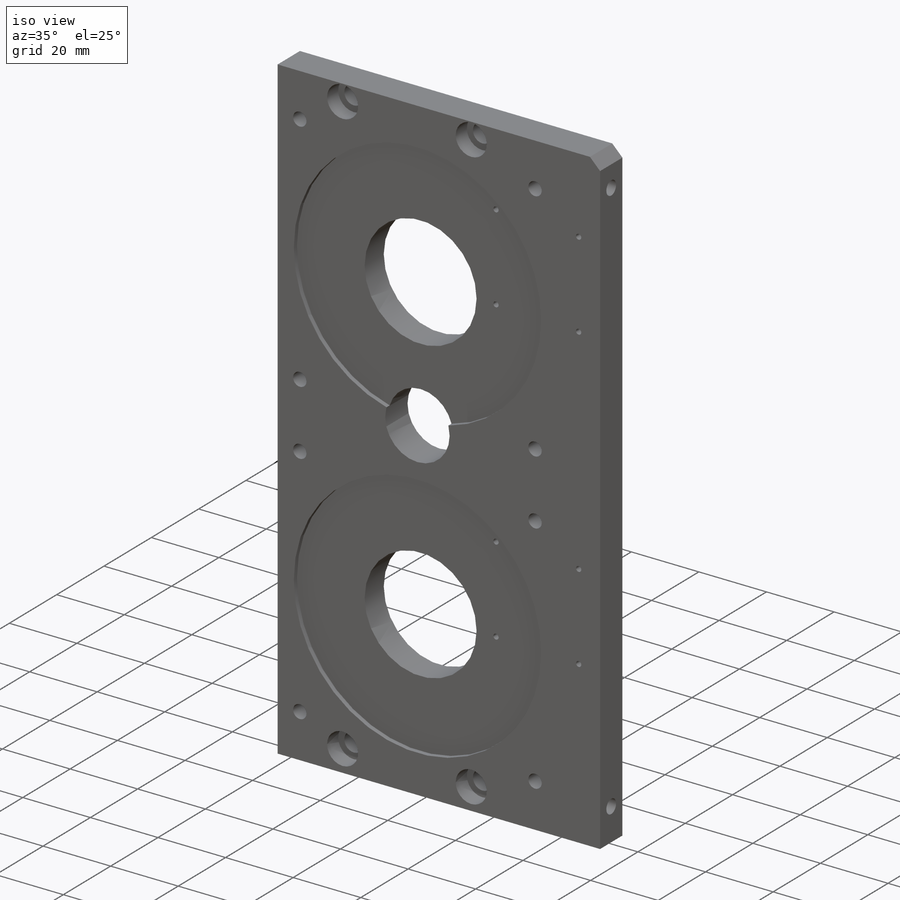
[diagram: iso view]
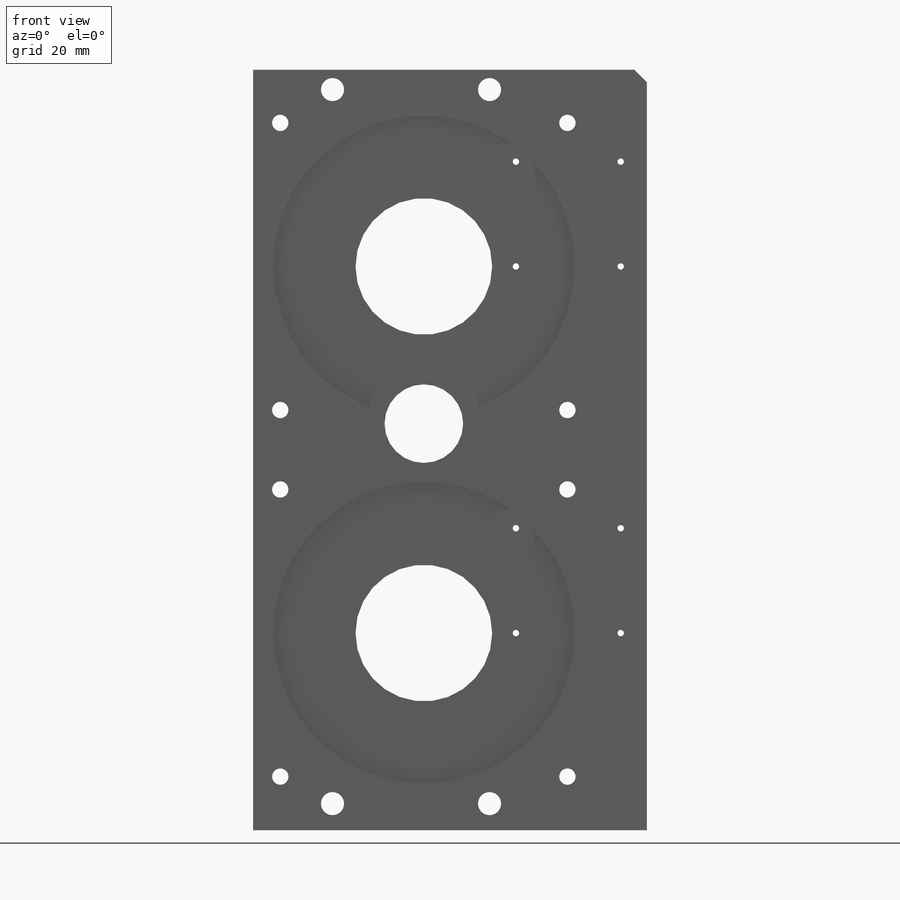
[diagram: front view]
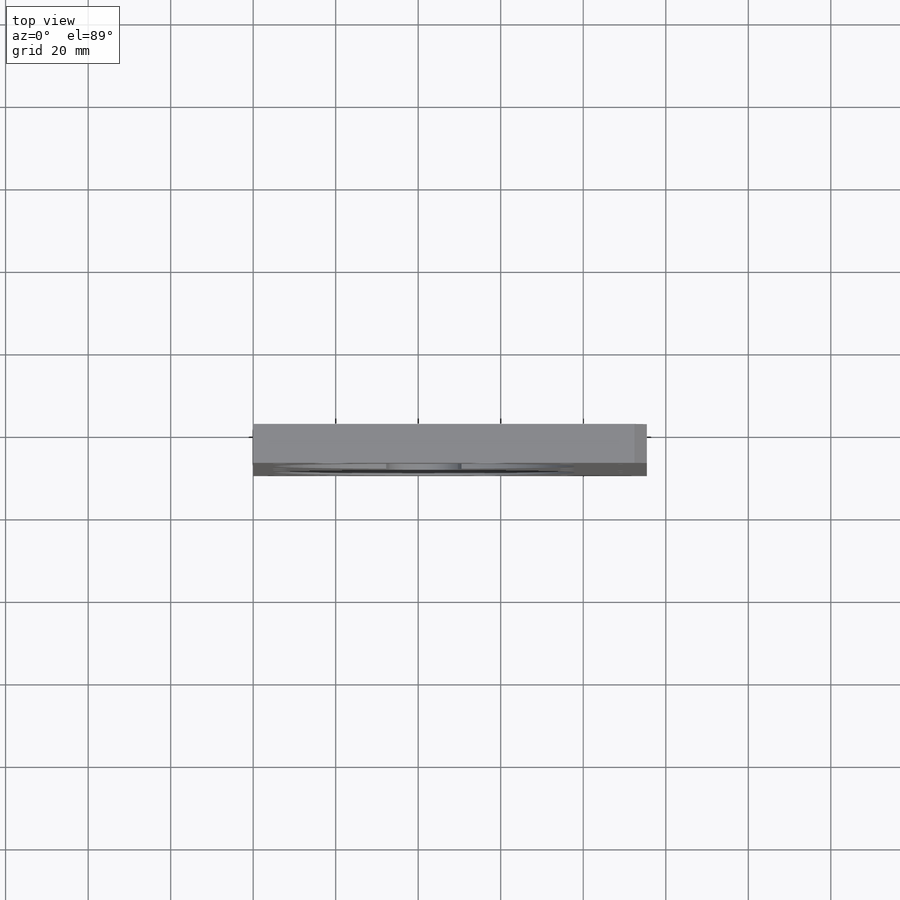
[diagram: top view]
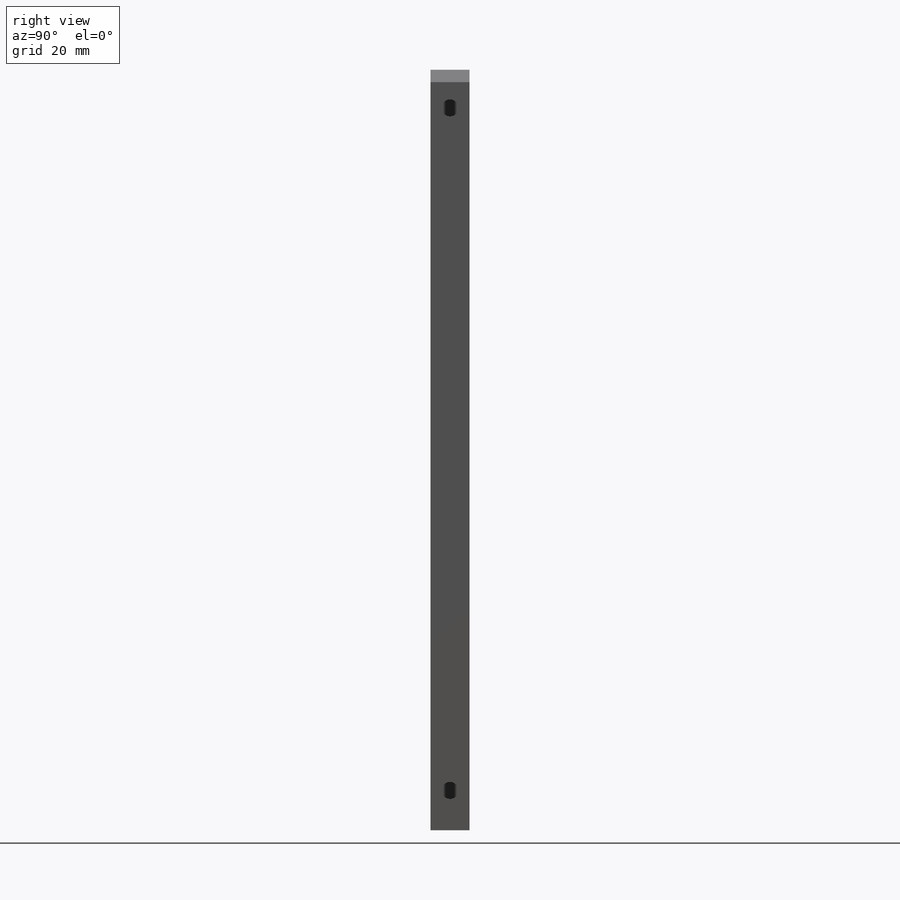
[diagram: right view]
SOLIDWORKS PART (.sldprt)
format: sldprt  version: not decoded by parser v0  size: 369,152 bytes
history: native  units: mm
features: sketch x8, cut_extrude x7, material x1, extrude x1, chamfer x1 (+16 scaffold rows collapsed)
feature tree (34):
  scaffold x16  (default folders/planes/origin — collapsed)
  material  "1060 Alloy"
  sketch  "Sketch1"  dims[D3=33.13mm D1=184.3mm D2=95.41mm D4=24.8mm D5=55.72mm D6=31.1mm]
  extrude  "Boss-Extrude1"  Depth=9.43mm
  chamfer  "Chamfer1"  Distance=3mm Angle=45deg
  sketch  "Sketch2"  dims[D1=73.15mm]
  cut_extrude  "Cut-Extrude1"  Depth=1.34mm
  sketch  "Sketch3"  dims[c1.D1=19.05mm c1.D4=73.15mm c1.D2=89.01mm c1.D3=31.84mm c2.D4=~80.22815mm]
  cut_extrude  "Cut-Extrude2"  [1 undecoded]
  sketch  "Sketch4"  dims[D1=5.6mm D2=2.0mm D3=16.43mm D4=32.46mm D5=3.64mm]
  cut_extrude  "Cut-Extrude3"  [1 undecoded]
  sketch  "Sketch5"  dims[D1=9.2mm]
  cut_extrude  "Cut-Extrude4"  Depth=4.72mm
  sketch  "Sketch6"  dims[D2=3.96mm D1=69.596mm]
  cut_extrude  "Cut-Extrude5"  [1 undecoded]
  sketch  "Sketch7"  dims[D1=4.12mm D2=7.54mm D3=161.3mm]
  cut_extrude  "Cut-Extrude6"  Depth=6.93mm
  sketch  "Sketch9"  dims[c1.D1=1.54mm c1.D2=5.56mm c1.D3=23.74mm c1.D4=25.28mm c2.D3=25.4mm c2.D4=21.29mm c2.D5=0.205mm]
  cut_extrude  "Cut-Extrude7"  [1 undecoded]
decode coverage: 13 of 17 modeling features carry decoded parameters
note: ~ marks probable driven/reference dimensions
note: 4 parameter values undecoded
summary: no parameter record found for 4 features
note: suppression state not decoded; provenance and decode notes live in map.json
